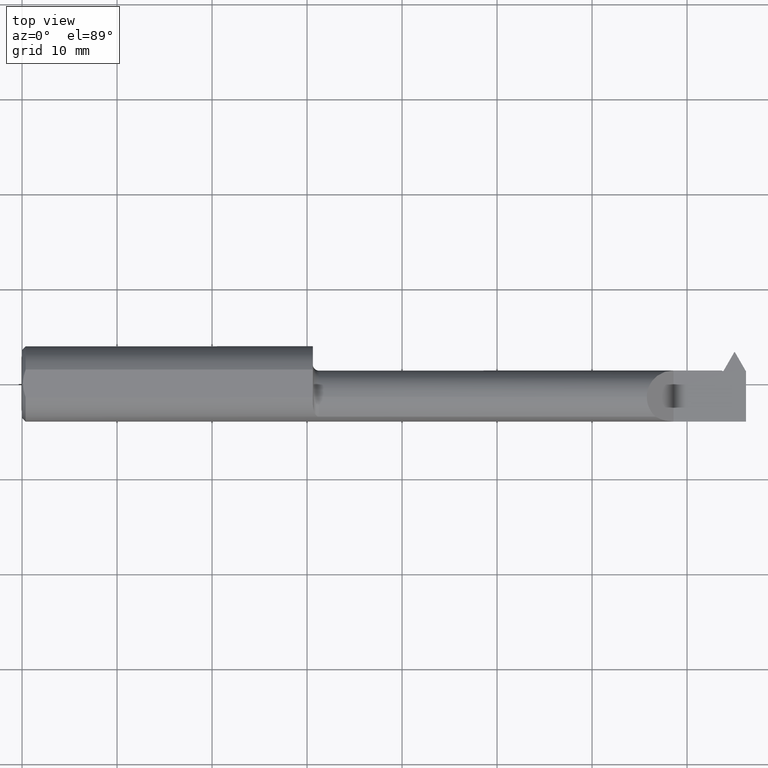
[diagram: clean part render]
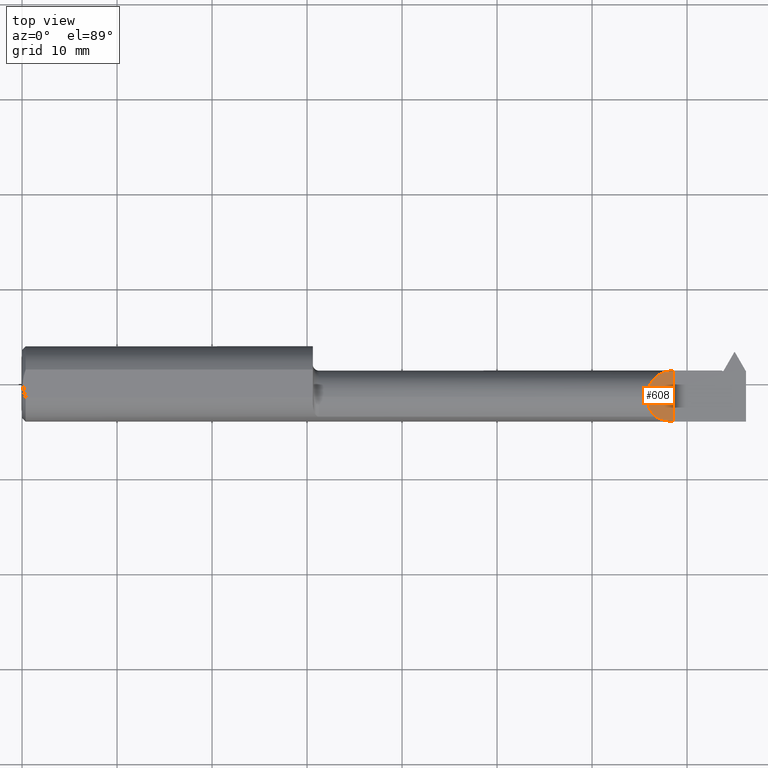
[diagram: same view with one face highlighted and labeled with its STEP entity id]
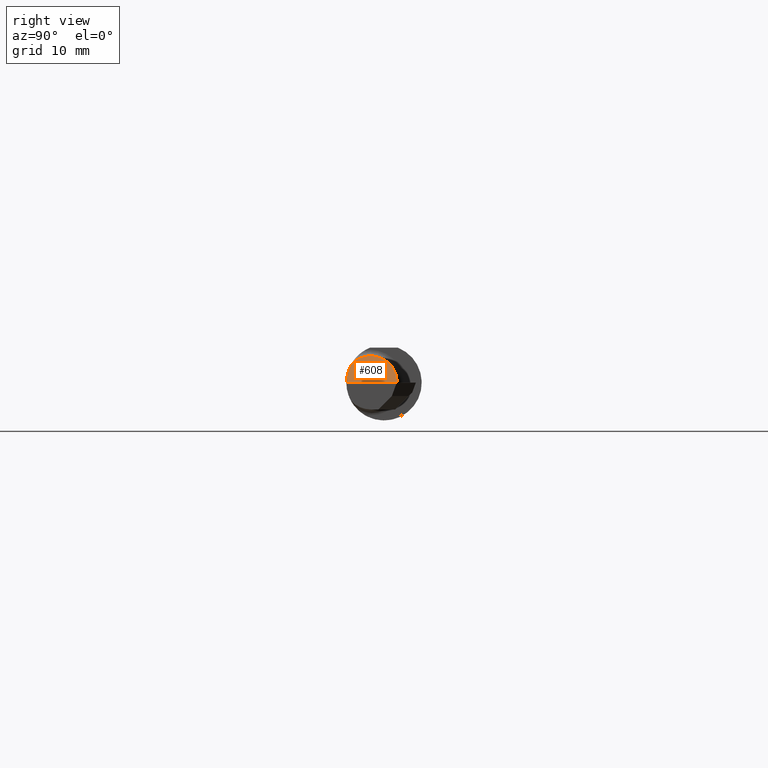
[diagram: same view with one face highlighted and labeled with its STEP entity id]
A machine part, top view. The second image highlights one B-rep face of the part: STEP entity #608.
A second angle (right view) of the same face is appended — the face is thin or edge-on in the first view.
In plain terms, the highlighted planar face has unit normal (-0.7071, 0, -0.7071).
Its self-contained STEP definition (entity closure, byte-faithful):
#1 = VECTOR ( 'NONE', #277, 39.37007874015748143 ) ;
#11 = CARTESIAN_POINT ( 'NONE',  ( 2.635024168887416529, 0.05584141814640498219, 0.06507583111258367914 ) ) ;
#42 = CARTESIAN_POINT ( 'NONE',  ( 2.625027139386173491, -0.1368622504537206908, 0.07507286061382660580 ) ) ;
#60 = CARTESIAN_POINT ( 'NONE',  ( 2.589100000000000623, -0.08664595039291338174, 0.1110000000000000014 ) ) ;
#86 = CARTESIAN_POINT ( 'NONE',  ( 2.700000000000000178, 0.05589995495494585326, 9.999999999974760253E-05 ) ) ;
#88 = VERTEX_POINT ( 'NONE', #581 ) ;
#113 = ORIENTED_EDGE ( 'NONE', *, *, #616, .F. ) ;
#120 = CARTESIAN_POINT ( 'NONE',  ( 2.700000000000000178, -0.1560999679692471886, 9.999999999974760253E-05 ) ) ;
#133 = DIRECTION ( 'NONE',  ( -0.7071067811865462405, 0.000000000000000000, 0.7071067811865486830 ) ) ;
#147 = LINE ( 'NONE', #729, #1 ) ;
#151 =( BOUNDED_CURVE ( )  B_SPLINE_CURVE ( 3, ( #861, #60, #359, #354 ),
 .UNSPECIFIED., .F., .F. ) 
 B_SPLINE_CURVE_WITH_KNOTS ( ( 4, 4 ),
 ( 0.000000000000000000, 0.8280247010054061496 ),
 .UNSPECIFIED. ) 
 CURVE ( )  GEOMETRIC_REPRESENTATION_ITEM ( )  RATIONAL_B_SPLINE_CURVE ( ( 1.000000000000000000, 0.9436760562907881011, 0.9436760562907881011, 1.000000000000000000 ) ) 
 REPRESENTATION_ITEM ( '' )  );
#241 = CARTESIAN_POINT ( 'NONE',  ( 2.589100000000000623, 0.009875857480521079562, 0.1110000000000000014 ) ) ;
#245 = ORIENTED_EDGE ( 'NONE', *, *, #592, .T. ) ;
#277 = DIRECTION ( 'NONE',  ( 0.000000000000000000, -1.000000000000000000, 0.000000000000000000 ) ) ;
#291 = CARTESIAN_POINT ( 'NONE',  ( 2.555000000000000604, 0.1749999999999999889, 0.1450999999999999512 ) ) ;
#354 = CARTESIAN_POINT ( 'NONE',  ( 2.625027139386173491, -0.1368622504537206908, 0.07507286061382660580 ) ) ;
#359 = CARTESIAN_POINT ( 'NONE',  ( 2.601790491667020255, -0.1155267122845507061, 0.09830950833298011948 ) ) ;
#461 = CARTESIAN_POINT ( 'NONE',  ( 2.700000000000000178, 0.05589995495494585326, 9.999999999974760253E-05 ) ) ;
#471 = CARTESIAN_POINT ( 'NONE',  ( 2.648128869355540260, -0.1495342103855427096, 0.05197113064445962188 ) ) ;
#484 = CARTESIAN_POINT ( 'NONE',  ( 2.673651030168674669, -0.1560830884207283498, 0.02644896983132491095 ) ) ;
#491 =( BOUNDED_CURVE ( )  B_SPLINE_CURVE ( 3, ( #86, #11, #241, #540 ),
 .UNSPECIFIED., .F., .T. ) 
 B_SPLINE_CURVE_WITH_KNOTS ( ( 4, 4 ),
 ( 4.713289881407453308, 6.283185307179586232 ),
 .UNSPECIFIED. ) 
 CURVE ( )  GEOMETRIC_REPRESENTATION_ITEM ( )  RATIONAL_B_SPLINE_CURVE ( ( 1.000000000000000000, 0.8049501506993195221, 0.8049501506993195221, 1.000000000000000000 ) ) 
 REPRESENTATION_ITEM ( '' )  );
#537 = ORIENTED_EDGE ( 'NONE', *, *, #784, .T. ) ;
#540 = CARTESIAN_POINT ( 'NONE',  ( 2.589100000000000623, -0.05509999999999999620, 0.1110000000000000014 ) ) ;
#556 = CARTESIAN_POINT ( 'NONE',  ( 2.700000000000000178, -0.1560999679692471886, 9.999999999974760253E-05 ) ) ;
#581 = CARTESIAN_POINT ( 'NONE',  ( 2.589100000000000623, -0.05509999999999999620, 0.1110000000000000014 ) ) ;
#592 = EDGE_CURVE ( 'NONE', #88, #843, #151, .T. ) ;
#594 =( BOUNDED_CURVE ( )  B_SPLINE_CURVE ( 3, ( #556, #484, #471, #710 ),
 .UNSPECIFIED., .F., .F. ) 
 B_SPLINE_CURVE_WITH_KNOTS ( ( 4, 4 ),
 ( 4.713029595418895212, 5.214101826882459711 ),
 .UNSPECIFIED. ) 
 CURVE ( )  GEOMETRIC_REPRESENTATION_ITEM ( )  RATIONAL_B_SPLINE_CURVE ( ( 1.000000000000000000, 0.9791864302132655684, 0.9791864302132655684, 1.000000000000000000 ) ) 
 REPRESENTATION_ITEM ( '' )  );
#608 = ADVANCED_FACE ( 'NONE', ( #944 ), #799, .F. ) ;
#616 = EDGE_CURVE ( 'NONE', #686, #825, #147, .T. ) ;
#669 = DIRECTION ( 'NONE',  ( -0.7071067811865487940, 0.000000000000000000, -0.7071067811865463515 ) ) ;
#686 = VERTEX_POINT ( 'NONE', #461 ) ;
#710 = CARTESIAN_POINT ( 'NONE',  ( 2.625027139386173491, -0.1368622504537206908, 0.07507286061382660580 ) ) ;
#729 = CARTESIAN_POINT ( 'NONE',  ( 2.700000000000000178, 0.1749999999999999889, 9.999999999974760253E-05 ) ) ;
#767 = ORIENTED_EDGE ( 'NONE', *, *, #842, .F. ) ;
#784 = EDGE_CURVE ( 'NONE', #686, #88, #491, .T. ) ;
#794 = EDGE_LOOP ( 'NONE', ( #113, #537, #245, #767 ) ) ;
#799 = PLANE ( 'NONE',  #854 ) ;
#825 = VERTEX_POINT ( 'NONE', #120 ) ;
#842 = EDGE_CURVE ( 'NONE', #825, #843, #594, .T. ) ;
#843 = VERTEX_POINT ( 'NONE', #42 ) ;
#854 = AXIS2_PLACEMENT_3D ( 'NONE', #291, #669, #133 ) ;
#861 = CARTESIAN_POINT ( 'NONE',  ( 2.589100000000000623, -0.05509999999999999620, 0.1110000000000000014 ) ) ;
#944 = FACE_OUTER_BOUND ( 'NONE', #794, .T. ) ;